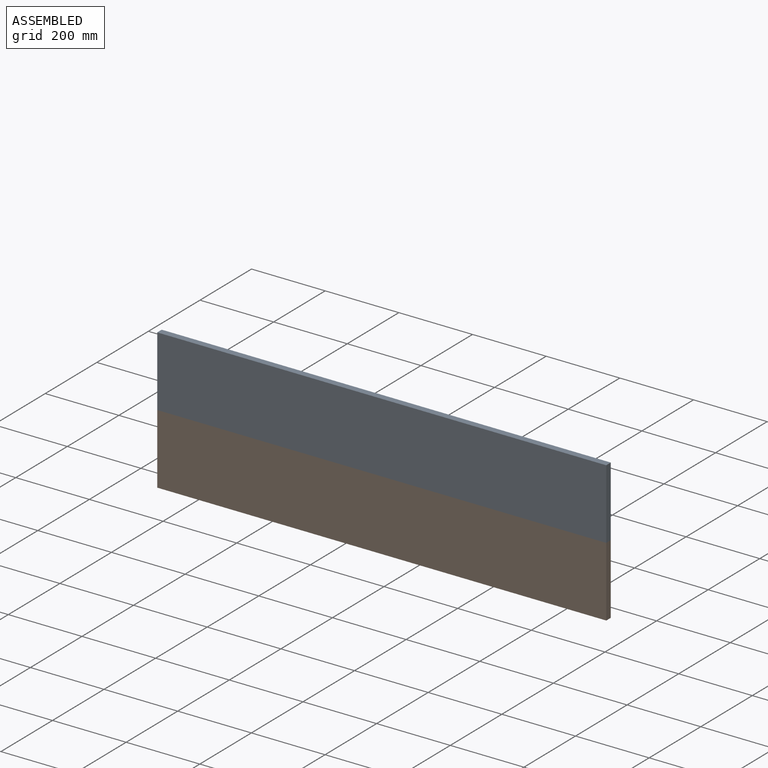
[diagram: assembled view]
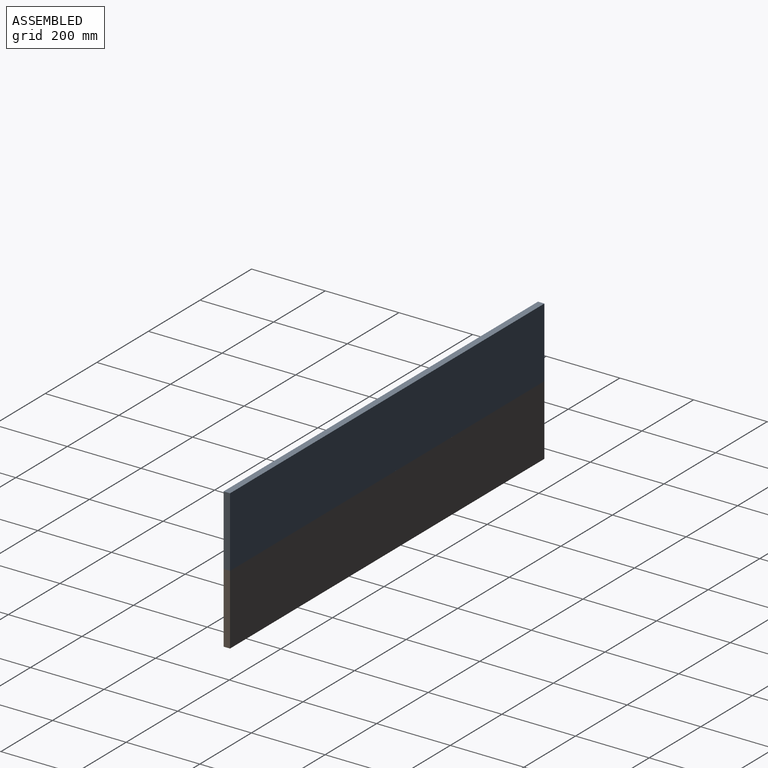
[diagram: assembled view, second angle]
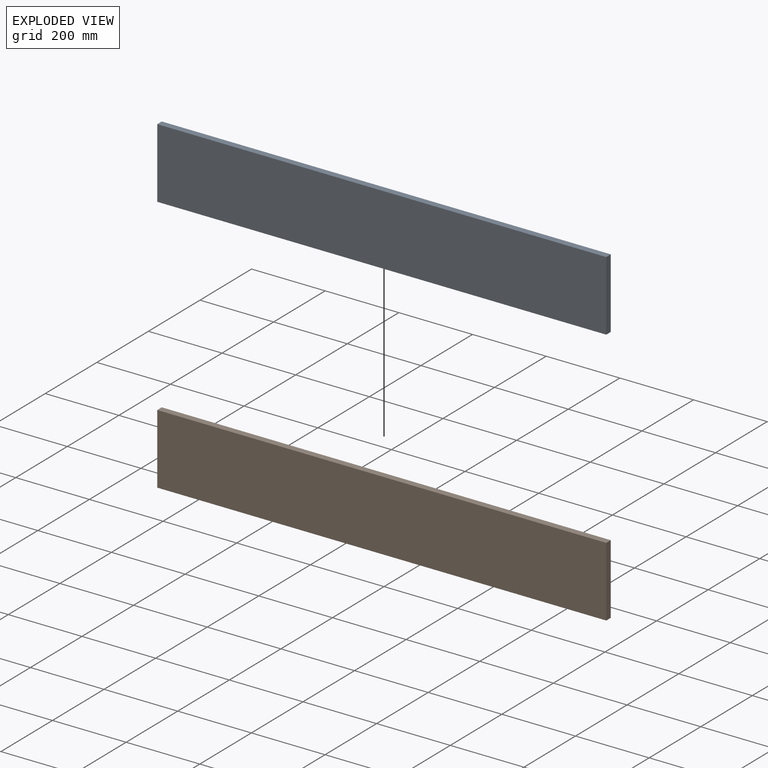
[diagram: exploded view]
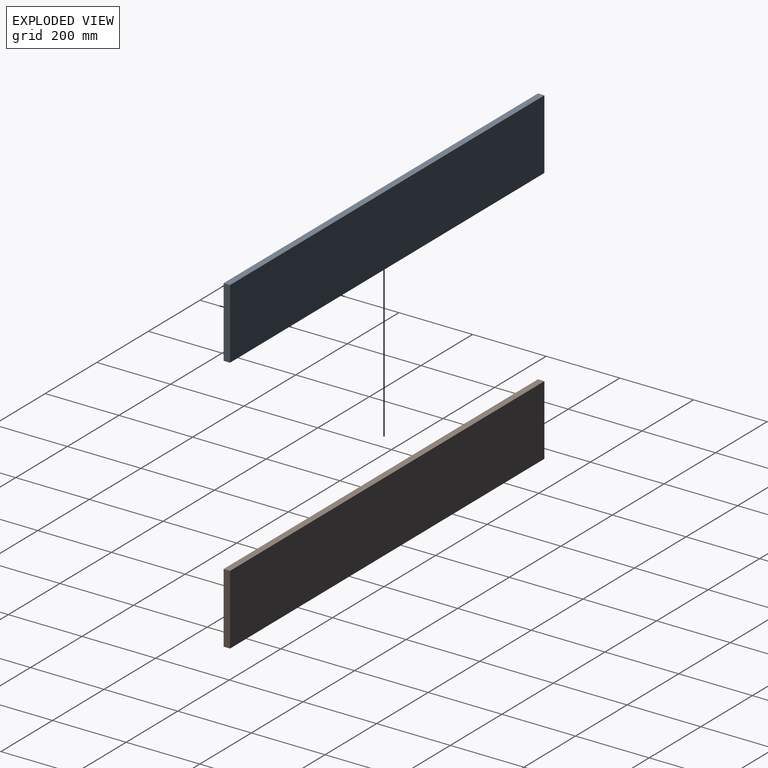
[diagram: exploded view, second angle]
ASSEMBLY  parts=2 mates=3
PART A: 6 faces, bbox 1219.2x17.5x190.5 mm
  f0: plane 1219.2x17.46mm, normal (0,0,1), area 21290.3mm2, adj f1,f3,f4,f5
  f1: plane 1219.2x190.5mm, normal (0,-1,0), area 232257.6mm2, adj f0,f2,f4,f5
  f2: plane 1219.2x17.46mm, normal (0,0,-1), area 21290.3mm2, adj f1,f3,f4,f5
  f3: plane 1219.2x190.5mm, normal (0,1,0), area 232257.6mm2, adj f0,f2,f4,f5
  f4: plane 190.5x17.46mm, normal (1,0,0), area 3326.6mm2, adj f0,f1,f2,f3
  f5: plane 190.5x17.46mm, normal (-1,0,0), area 3326.6mm2, adj f0,f1,f2,f3
PART B: same geometry as A
PLACE A t=(0,0,190.5)mm
PLACE B at identity fixed
MATE planar A.f2 <-> B.f0  axis (0,0,-1) through (0,0,95.25)mm
MATE planar A.f4 <-> B.f4  axis (1,0,0) through (609.6,0,190.5)mm
MATE planar A.f1 <-> B.f1  axis (0,-1,0) through (0,-8.73,190.5)mm
